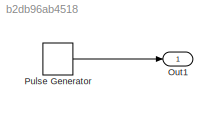
MODEL slx_b2db96ab4518
KIND model
CONFIG AbsTol = auto
CONFIG EnableMultiTasking = on
CONFIG FixedStep = 0.100000
CONFIG MaxStep = auto
CONFIG MinStep = auto
CONFIG RelTol = 1e-3
CONFIG SampleTimeConstraint = Unconstrained
CONFIG Solver = ode3
CONFIG SolverName = ode3
CONFIG StartTime = 0.0
CONFIG StopTime = 10.0
WORKSPACE source: MAT-file member
WORKSPACE A = [2 5 4 4]
BLOCK [Outport] Out1
  IconDisplay = Port number
BLOCK [DiscretePulseGenerator] Pulse Generator
  Amplitude = 1.5
  Period = 6
  PhaseDelay = 1
  Ports = [0, 1]
  PulseWidth = 2
  SampleTime = .1
  VectorParams1D = off
LINE Pulse Generator:1 -> Out1:1
